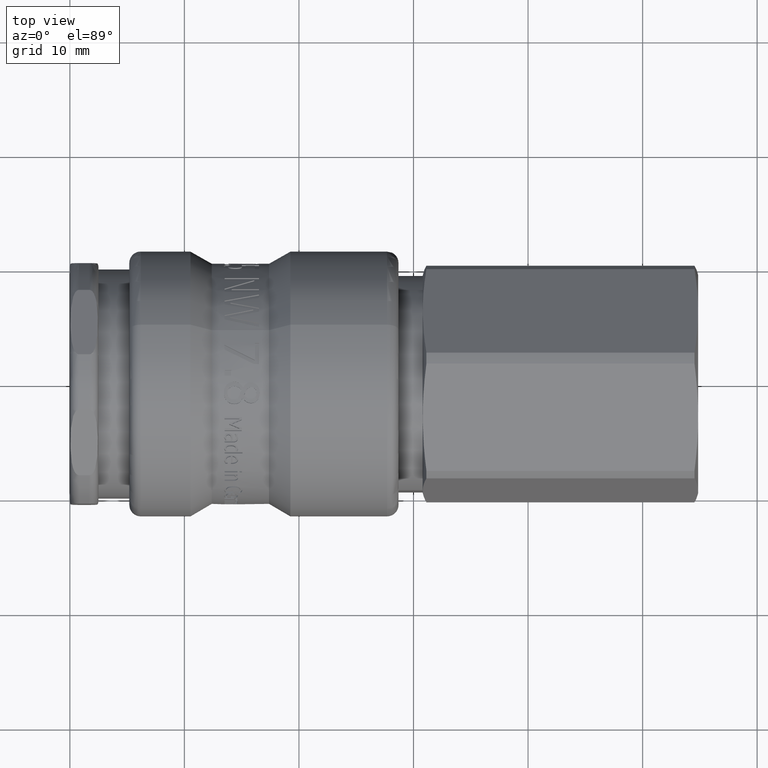
[diagram: clean part render]
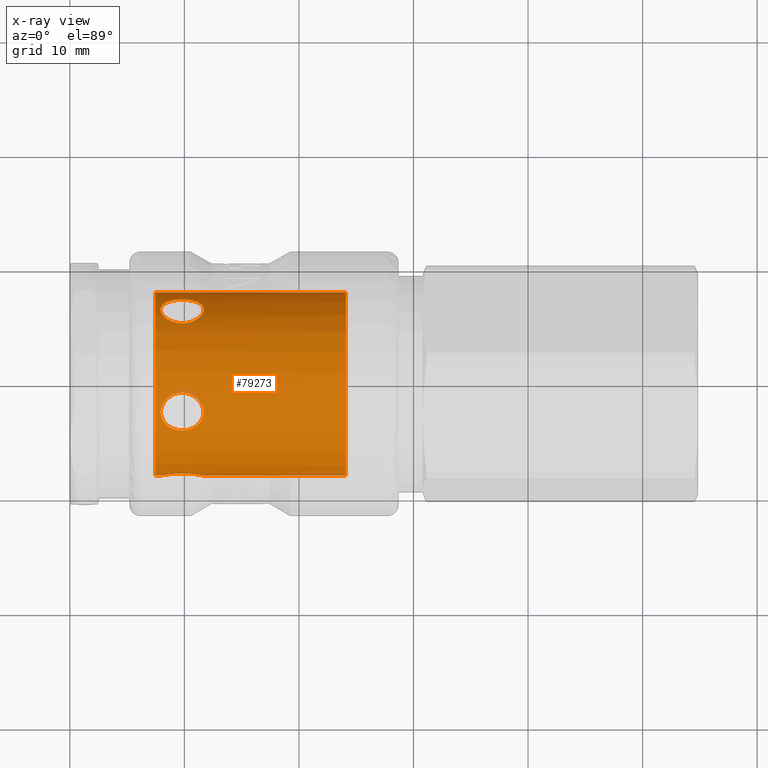
[diagram: x-ray — body ghosted, one internal face saturated and labeled with its STEP entity id]
A machine part, top view, then the same camera in x-ray: the body is ghosted and one INTERNAL B-rep face — a face not visible from any outside direction — is saturated and labeled: STEP entity #79273.
In plain terms, the highlighted cylindrical surface (bore or boss wall) has radius 8 mm, axis along (1, 0, 0).
Its self-contained STEP definition (entity closure, byte-faithful):
#79041=CARTESIAN_POINT('',(18.699999999999999,0.0,0.0));
#79042=DIRECTION('',(1.0,0.0,0.0));
#79043=DIRECTION('',(0.0,1.0,0.0));
#79044=AXIS2_PLACEMENT_3D('',#79041,#79042,#79043);
#79045=CYLINDRICAL_SURFACE('',#79044,8.0);
#79046=CARTESIAN_POINT('',(24.099999999999994,-7.846247984902929,1.560894794471023));
#79047=VERTEX_POINT('',#79046);
#79048=CARTESIAN_POINT('',(24.099999999999994,0.0,0.0));
#79049=DIRECTION('',(-1.0,0.0,0.0));
#79050=DIRECTION('',(0.0,1.0,0.0));
#79051=AXIS2_PLACEMENT_3D('',#79048,#79049,#79050);
#79052=CIRCLE('',#79051,8.0);
#79053=EDGE_CURVE('',#79047,#79047,#79052,.T.);
#79054=ORIENTED_EDGE('',*,*,#79053,.T.);
#79055=EDGE_LOOP('',(#79054));
#79056=FACE_OUTER_BOUND('',#79055,.T.);
#79057=CARTESIAN_POINT('',(9.800000000000001,-4.184617465493961,6.818282530629169));
#79058=VERTEX_POINT('',#79057);
#79059=CARTESIAN_POINT('',(9.800000000000001,-4.184617465493961,6.818282530629169));
#79060=CARTESIAN_POINT('',(9.562953105394296,-4.184617465493961,6.818282530629169));
#79061=CARTESIAN_POINT('',(9.310429020530565,-4.143776551711571,6.843869532865576));
#79062=CARTESIAN_POINT('',(8.845972093103741,-3.976393355732788,6.942458501612481));
#79063=CARTESIAN_POINT('',(8.633969101640776,-3.84968083860342,7.014839908244293));
#79064=CARTESIAN_POINT('',(8.297897496624691,-3.55252623333556,7.169917073077848));
#79065=CARTESIAN_POINT('',(8.151299058588545,-3.361779748357164,7.263084206606292));
#79066=CARTESIAN_POINT('',(7.956174254062867,-2.934699200206196,7.445904638664429));
#79067=CARTESIAN_POINT('',(7.90770785583396,-2.698111226740381,7.535028313711059));
#79068=CARTESIAN_POINT('',(7.90770785583396,-2.246160683258776,7.6818759470114));
#79069=CARTESIAN_POINT('',(7.956174254062867,-2.002371410237687,7.748836300970494));
#79070=CARTESIAN_POINT('',(8.151299058588545,-1.549396835035074,7.851963112260614));
#79071=CARTESIAN_POINT('',(8.297897496624691,-1.340317419983883,7.888707288715832));
#79072=CARTESIAN_POINT('',(8.633969101640776,-1.008762223908913,7.937910321553241));
#79073=CARTESIAN_POINT('',(8.845972093103741,-0.863704920792864,7.95383228236084));
#79074=CARTESIAN_POINT('',(9.310429020530565,-0.670339928805082,7.972457505264603));
#79075=CARTESIAN_POINT('',(9.562953105394296,-0.622259272924392,7.975762872431679));
#79076=CARTESIAN_POINT('',(10.037046894605703,-0.622259272924392,7.975762872431679));
#79077=CARTESIAN_POINT('',(10.289570979469435,-0.670339928805082,7.972457505264603));
#79078=CARTESIAN_POINT('',(10.754027906896262,-0.863704920792866,7.95383228236084));
#79079=CARTESIAN_POINT('',(10.966030898359222,-1.008762223908913,7.937910321553241));
#79080=CARTESIAN_POINT('',(11.302102503375311,-1.340317419983883,7.888707288715832));
#79081=CARTESIAN_POINT('',(11.448700941411449,-1.549396835035075,7.851963112260613));
#79082=CARTESIAN_POINT('',(11.64382574593713,-2.002371410237688,7.748836300970493));
#79083=CARTESIAN_POINT('',(11.692292144166041,-2.246160683258776,7.681875947011401));
#79084=CARTESIAN_POINT('',(11.692292144166039,-2.698111226740381,7.535028313711059));
#79085=CARTESIAN_POINT('',(11.64382574593713,-2.934699200206196,7.445904638664429));
#79086=CARTESIAN_POINT('',(11.448700941411449,-3.361779748357164,7.263084206606292));
#79087=CARTESIAN_POINT('',(11.302102503375311,-3.55252623333556,7.169917073077848));
#79088=CARTESIAN_POINT('',(10.966030898359222,-3.84968083860342,7.014839908244293));
#79089=CARTESIAN_POINT('',(10.754027906896258,-3.976393355732788,6.942458501612481));
#79090=CARTESIAN_POINT('',(10.289570979469435,-4.143776551711571,6.843869532865576));
#79091=CARTESIAN_POINT('',(10.037046894605703,-4.184617465493961,6.818282530629169));
#79092=CARTESIAN_POINT('',(9.799999999999999,-4.184617465493961,6.818282530629169));
#79093=B_SPLINE_CURVE_WITH_KNOTS('',3,(#79059,#79060,#79061,#79062,#79063,#79064,#79065,#79066,#79067,#79068,#79069,#79070,#79071,#79072,#79073,#79074,#79075,#79076,#79077,#79078,#79079,#79080,#79081,#79082,#79083,#79084,#79085,#79086,#79087,#79088,#79089,#79090,#79091,#79092),.UNSPECIFIED.,.T.,.U.,(4,2,2,2,2,2,2,2,2,2,2,2,2,2,2,2,4),(0.0,0.071114068381711,0.142228136763422,0.213509475317651,0.28479081387188,0.356072152426109,0.427353490980339,0.49846755936205,0.56958162774376,0.640695696125471,0.711809764507182,0.783091103061411,0.854372441615641,0.92565378016987,0.996935118724099,1.06804918710581,1.139163255487521),.UNSPECIFIED.);
#79094=EDGE_CURVE('',#79058,#79058,#79093,.T.);
#79095=ORIENTED_EDGE('',*,*,#79094,.T.);
#79096=EDGE_LOOP('',(#79095));
#79097=FACE_BOUND('',#79096,.T.);
#79098=CARTESIAN_POINT('',(9.799999999999999,5.191454118900428,6.086772883174778));
#79099=VERTEX_POINT('',#79098);
#79100=CARTESIAN_POINT('',(9.799999999999999,5.191454118900428,6.086772883174777));
#79101=CARTESIAN_POINT('',(9.562953105394296,5.191454118900428,6.086772883174777));
#79102=CARTESIAN_POINT('',(9.310429020530565,5.228409340534381,6.055837684516744));
#79103=CARTESIAN_POINT('',(8.845972093103743,5.373897273826181,5.927112472063508));
#79104=CARTESIAN_POINT('',(8.63396910164078,5.481892403454976,5.828968791677458));
#79105=CARTESIAN_POINT('',(8.297897496624692,5.721205374583054,5.594279447363398));
#79106=CARTESIAN_POINT('',(8.151299058588551,5.86875648950543,5.44165898744179));
#79107=CARTESIAN_POINT('',(7.956174254062869,6.174604200071835,5.091975869564841));
#79108=CARTESIAN_POINT('',(7.90770785583396,6.33247555644677,4.894508065913669));
#79109=CARTESIAN_POINT('',(7.90770785583396,6.611796353552391,4.510055970765899));
#79110=CARTESIAN_POINT('',(7.956174254062869,6.750814462928448,4.298890481379056));
#79111=CARTESIAN_POINT('',(8.151299058588549,6.988870730568037,3.899953997180928));
#79112=CARTESIAN_POINT('',(8.297897496624687,7.088425611446461,3.712462232042287));
#79113=CARTESIAN_POINT('',(8.633969101640775,7.237676666608448,3.412339075625217));
#79114=CARTESIAN_POINT('',(8.84597209310374,7.297644523007768,3.279301538733819));
#79115=CARTESIAN_POINT('',(9.310429020530563,7.375111231259242,3.101156013481762));
#79116=CARTESIAN_POINT('',(9.562953105394296,7.393112562010062,3.056450007025963));
#79117=CARTESIAN_POINT('',(10.037046894605703,7.393112562010062,3.056450007025963));
#79118=CARTESIAN_POINT('',(10.289570979469435,7.375111231259242,3.101156013481762));
#79119=CARTESIAN_POINT('',(10.75402790689626,7.297644523007768,3.279301538733818));
#79120=CARTESIAN_POINT('',(10.966030898359222,7.237676666608447,3.412339075625217));
#79121=CARTESIAN_POINT('',(11.302102503375311,7.088425611446461,3.712462232042286));
#79122=CARTESIAN_POINT('',(11.448700941411449,6.988870730568037,3.899953997180926));
#79123=CARTESIAN_POINT('',(11.64382574593713,6.750814462928448,4.298890481379054));
#79124=CARTESIAN_POINT('',(11.692292144166039,6.611796353552391,4.510055970765898));
#79125=CARTESIAN_POINT('',(11.692292144166039,6.33247555644677,4.894508065913669));
#79126=CARTESIAN_POINT('',(11.64382574593713,6.174604200071833,5.091975869564841));
#79127=CARTESIAN_POINT('',(11.448700941411449,5.868756489505429,5.44165898744179));
#79128=CARTESIAN_POINT('',(11.302102503375306,5.721205374583054,5.594279447363398));
#79129=CARTESIAN_POINT('',(10.966030898359222,5.481892403454978,5.828968791677458));
#79130=CARTESIAN_POINT('',(10.75402790689626,5.373897273826182,5.927112472063509));
#79131=CARTESIAN_POINT('',(10.289570979469435,5.228409340534381,6.055837684516746));
#79132=CARTESIAN_POINT('',(10.037046894605703,5.191454118900428,6.086772883174777));
#79133=CARTESIAN_POINT('',(9.800000000000001,5.191454118900428,6.086772883174777));
#79134=B_SPLINE_CURVE_WITH_KNOTS('',3,(#79100,#79101,#79102,#79103,#79104,#79105,#79106,#79107,#79108,#79109,#79110,#79111,#79112,#79113,#79114,#79115,#79116,#79117,#79118,#79119,#79120,#79121,#79122,#79123,#79124,#79125,#79126,#79127,#79128,#79129,#79130,#79131,#79132,#79133),.UNSPECIFIED.,.T.,.U.,(4,2,2,2,2,2,2,2,2,2,2,2,2,2,2,2,4),(0.0,0.071114068381711,0.142228136763421,0.213509475317651,0.28479081387188,0.356072152426109,0.427353490980338,0.498467559362049,0.56958162774376,0.640695696125471,0.711809764507182,0.783091103061411,0.854372441615641,0.92565378016987,0.996935118724099,1.06804918710581,1.139163255487521),.UNSPECIFIED.);
#79135=EDGE_CURVE('',#79099,#79099,#79134,.T.);
#79136=ORIENTED_EDGE('',*,*,#79135,.T.);
#79137=EDGE_LOOP('',(#79136));
#79138=FACE_BOUND('',#79137,.T.);
#79139=CARTESIAN_POINT('',(9.800000000000001,7.393112562010062,-3.056450007025964));
#79140=VERTEX_POINT('',#79139);
#79141=CARTESIAN_POINT('',(9.800000000000001,7.393112562010062,-3.056450007025964));
#79142=CARTESIAN_POINT('',(9.562953105394296,7.393112562010062,-3.056450007025964));
#79143=CARTESIAN_POINT('',(9.310429020530565,7.375111231259241,-3.101156013481765));
#79144=CARTESIAN_POINT('',(8.845972093103741,7.297644523007766,-3.279301538733821));
#79145=CARTESIAN_POINT('',(8.633969101640776,7.237676666608445,-3.412339075625219));
#79146=CARTESIAN_POINT('',(8.297897496624691,7.088425611446461,-3.71246223204229));
#79147=CARTESIAN_POINT('',(8.151299058588547,6.988870730568037,-3.899953997180929));
#79148=CARTESIAN_POINT('',(7.956174254062868,6.750814462928446,-4.298890481379058));
#79149=CARTESIAN_POINT('',(7.90770785583396,6.611796353552388,-4.510055970765901));
#79150=CARTESIAN_POINT('',(7.90770785583396,6.332475556446769,-4.894508065913671));
#79151=CARTESIAN_POINT('',(7.956174254062868,6.174604200071833,-5.091975869564841));
#79152=CARTESIAN_POINT('',(8.151299058588549,5.86875648950543,-5.441658987441789));
#79153=CARTESIAN_POINT('',(8.297897496624689,5.721205374583052,-5.594279447363398));
#79154=CARTESIAN_POINT('',(8.633969101640775,5.481892403454975,-5.828968791677458));
#79155=CARTESIAN_POINT('',(8.845972093103738,5.373897273826181,-5.92711247206351));
#79156=CARTESIAN_POINT('',(9.310429020530563,5.228409340534379,-6.055837684516749));
#79157=CARTESIAN_POINT('',(9.562953105394296,5.191454118900428,-6.086772883174779));
#79158=CARTESIAN_POINT('',(10.037046894605703,5.191454118900428,-6.08677288317478));
#79159=CARTESIAN_POINT('',(10.289570979469435,5.228409340534379,-6.055837684516749));
#79160=CARTESIAN_POINT('',(10.75402790689626,5.373897273826179,-5.927112472063511));
#79161=CARTESIAN_POINT('',(10.966030898359222,5.481892403454975,-5.828968791677458));
#79162=CARTESIAN_POINT('',(11.302102503375311,5.721205374583052,-5.5942794473634));
#79163=CARTESIAN_POINT('',(11.448700941411449,5.868756489505431,-5.441658987441789));
#79164=CARTESIAN_POINT('',(11.643825745937129,6.174604200071836,-5.091975869564839));
#79165=CARTESIAN_POINT('',(11.692292144166041,6.33247555644677,-4.894508065913672));
#79166=CARTESIAN_POINT('',(11.692292144166039,6.611796353552388,-4.510055970765901));
#79167=CARTESIAN_POINT('',(11.64382574593713,6.750814462928445,-4.298890481379056));
#79168=CARTESIAN_POINT('',(11.448700941411449,6.988870730568035,-3.899953997180928));
#79169=CARTESIAN_POINT('',(11.302102503375306,7.088425611446461,-3.71246223204229));
#79170=CARTESIAN_POINT('',(10.966030898359222,7.237676666608445,-3.41233907562522));
#79171=CARTESIAN_POINT('',(10.754027906896262,7.297644523007767,-3.279301538733821));
#79172=CARTESIAN_POINT('',(10.289570979469438,7.375111231259242,-3.101156013481763));
#79173=CARTESIAN_POINT('',(10.037046894605703,7.393112562010062,-3.056450007025964));
#79174=CARTESIAN_POINT('',(9.800000000000001,7.393112562010062,-3.056450007025964));
#79175=B_SPLINE_CURVE_WITH_KNOTS('',3,(#79141,#79142,#79143,#79144,#79145,#79146,#79147,#79148,#79149,#79150,#79151,#79152,#79153,#79154,#79155,#79156,#79157,#79158,#79159,#79160,#79161,#79162,#79163,#79164,#79165,#79166,#79167,#79168,#79169,#79170,#79171,#79172,#79173,#79174),.UNSPECIFIED.,.T.,.U.,(4,2,2,2,2,2,2,2,2,2,2,2,2,2,2,2,4),(0.0,0.071114068381711,0.142228136763422,0.213509475317651,0.28479081387188,0.356072152426109,0.427353490980338,0.498467559362049,0.56958162774376,0.640695696125471,0.711809764507182,0.783091103061411,0.854372441615641,0.92565378016987,0.996935118724099,1.06804918710581,1.139163255487521),.UNSPECIFIED.);
#79176=EDGE_CURVE('',#79140,#79140,#79175,.T.);
#79177=ORIENTED_EDGE('',*,*,#79176,.T.);
#79178=EDGE_LOOP('',(#79177));
#79179=FACE_BOUND('',#79178,.T.);
#79180=CARTESIAN_POINT('',(9.800000000000001,-0.622259272924394,-7.975762872431679));
#79181=VERTEX_POINT('',#79180);
#79182=CARTESIAN_POINT('',(9.800000000000001,-0.622259272924394,-7.975762872431679));
#79183=CARTESIAN_POINT('',(9.562953105394296,-0.622259272924394,-7.975762872431679));
#79184=CARTESIAN_POINT('',(9.310429020530565,-0.670339928805084,-7.972457505264603));
#79185=CARTESIAN_POINT('',(8.845972093103741,-0.863704920792866,-7.95383228236084));
#79186=CARTESIAN_POINT('',(8.633969101640776,-1.008762223908915,-7.937910321553241));
#79187=CARTESIAN_POINT('',(8.297897496624691,-1.340317419983885,-7.888707288715832));
#79188=CARTESIAN_POINT('',(8.151299058588547,-1.549396835035076,-7.851963112260613));
#79189=CARTESIAN_POINT('',(7.956174254062868,-2.002371410237689,-7.748836300970493));
#79190=CARTESIAN_POINT('',(7.90770785583396,-2.246160683258778,-7.681875947011399));
#79191=CARTESIAN_POINT('',(7.90770785583396,-2.698111226740382,-7.535028313711059));
#79192=CARTESIAN_POINT('',(7.956174254062867,-2.934699200206198,-7.445904638664429));
#79193=CARTESIAN_POINT('',(8.151299058588545,-3.361779748357165,-7.263084206606292));
#79194=CARTESIAN_POINT('',(8.297897496624691,-3.55252623333556,-7.169917073077848));
#79195=CARTESIAN_POINT('',(8.633969101640776,-3.849680838603421,-7.014839908244293));
#79196=CARTESIAN_POINT('',(8.84597209310374,-3.976393355732788,-6.94245850161248));
#79197=CARTESIAN_POINT('',(9.310429020530563,-4.143776551711571,-6.843869532865575));
#79198=CARTESIAN_POINT('',(9.562953105394296,-4.184617465493963,-6.818282530629168));
#79199=CARTESIAN_POINT('',(10.037046894605703,-4.184617465493963,-6.818282530629168));
#79200=CARTESIAN_POINT('',(10.289570979469435,-4.143776551711571,-6.843869532865575));
#79201=CARTESIAN_POINT('',(10.75402790689626,-3.976393355732788,-6.94245850161248));
#79202=CARTESIAN_POINT('',(10.966030898359222,-3.849680838603422,-7.014839908244293));
#79203=CARTESIAN_POINT('',(11.302102503375311,-3.552526233335561,-7.169917073077848));
#79204=CARTESIAN_POINT('',(11.448700941411449,-3.361779748357165,-7.263084206606292));
#79205=CARTESIAN_POINT('',(11.64382574593713,-2.934699200206198,-7.445904638664429));
#79206=CARTESIAN_POINT('',(11.692292144166039,-2.698111226740382,-7.535028313711059));
#79207=CARTESIAN_POINT('',(11.692292144166039,-2.246160683258778,-7.681875947011399));
#79208=CARTESIAN_POINT('',(11.643825745937132,-2.002371410237689,-7.748836300970493));
#79209=CARTESIAN_POINT('',(11.448700941411452,-1.549396835035076,-7.851963112260613));
#79210=CARTESIAN_POINT('',(11.302102503375309,-1.340317419983886,-7.888707288715832));
#79211=CARTESIAN_POINT('',(10.966030898359222,-1.008762223908915,-7.937910321553241));
#79212=CARTESIAN_POINT('',(10.754027906896262,-0.863704920792868,-7.953832282360841));
#79213=CARTESIAN_POINT('',(10.289570979469435,-0.670339928805084,-7.972457505264604));
#79214=CARTESIAN_POINT('',(10.037046894605703,-0.622259272924394,-7.975762872431679));
#79215=CARTESIAN_POINT('',(9.800000000000001,-0.622259272924394,-7.975762872431679));
#79216=B_SPLINE_CURVE_WITH_KNOTS('',3,(#79182,#79183,#79184,#79185,#79186,#79187,#79188,#79189,#79190,#79191,#79192,#79193,#79194,#79195,#79196,#79197,#79198,#79199,#79200,#79201,#79202,#79203,#79204,#79205,#79206,#79207,#79208,#79209,#79210,#79211,#79212,#79213,#79214,#79215),.UNSPECIFIED.,.T.,.U.,(4,2,2,2,2,2,2,2,2,2,2,2,2,2,2,2,4),(0.0,0.071114068381711,0.142228136763422,0.213509475317651,0.28479081387188,0.356072152426109,0.427353490980338,0.498467559362049,0.56958162774376,0.640695696125471,0.711809764507182,0.783091103061412,0.854372441615641,0.92565378016987,0.996935118724099,1.06804918710581,1.139163255487521),.UNSPECIFIED.);
#79217=EDGE_CURVE('',#79181,#79181,#79216,.T.);
#79218=ORIENTED_EDGE('',*,*,#79217,.T.);
#79219=EDGE_LOOP('',(#79218));
#79220=FACE_BOUND('',#79219,.T.);
#79221=CARTESIAN_POINT('',(9.800000000000001,-7.777689942492136,-1.872842534346306));
#79222=VERTEX_POINT('',#79221);
#79223=CARTESIAN_POINT('',(9.800000000000001,-7.777689942492136,-1.872842534346306));
#79224=CARTESIAN_POINT('',(9.562953105394296,-7.777689942492136,-1.872842534346306));
#79225=CARTESIAN_POINT('',(9.310429020530563,-7.789404091276968,-1.826093698635955));
#79226=CARTESIAN_POINT('',(8.845972093103738,-7.831443520308294,-1.636437152581329));
#79227=CARTESIAN_POINT('',(8.633969101640775,-7.861126007551087,-1.493559302743291));
#79228=CARTESIAN_POINT('',(8.297897496624687,-7.916787332710069,-1.163026999683125));
#79229=CARTESIAN_POINT('',(8.151299058588547,-7.946450636681228,-0.952826084606536));
#79230=CARTESIAN_POINT('',(7.956174254062868,-7.988348052556398,-0.490153725879717));
#79231=CARTESIAN_POINT('',(7.907707855833959,-8.0,-0.237604461847431));
#79232=CARTESIAN_POINT('',(7.907707855833959,-8.0,0.237604461847431));
#79233=CARTESIAN_POINT('',(7.956174254062868,-7.988348052556398,0.490153725879717));
#79234=CARTESIAN_POINT('',(8.151299058588547,-7.946450636681228,0.952826084606536));
#79235=CARTESIAN_POINT('',(8.297897496624687,-7.916787332710069,1.163026999683125));
#79236=CARTESIAN_POINT('',(8.633969101640775,-7.861126007551087,1.493559302743291));
#79237=CARTESIAN_POINT('',(8.845972093103738,-7.831443520308294,1.636437152581329));
#79238=CARTESIAN_POINT('',(9.310429020530563,-7.789404091276968,1.826093698635955));
#79239=CARTESIAN_POINT('',(9.562953105394296,-7.777689942492136,1.872842534346306));
#79240=CARTESIAN_POINT('',(10.037046894605703,-7.777689942492136,1.872842534346306));
#79241=CARTESIAN_POINT('',(10.289570979469435,-7.789404091276968,1.826093698635956));
#79242=CARTESIAN_POINT('',(10.754027906896262,-7.831443520308294,1.636437152581329));
#79243=CARTESIAN_POINT('',(10.966030898359222,-7.861126007551087,1.493559302743291));
#79244=CARTESIAN_POINT('',(11.302102503375311,-7.916787332710069,1.163026999683125));
#79245=CARTESIAN_POINT('',(11.448700941411452,-7.946450636681228,0.952826084606536));
#79246=CARTESIAN_POINT('',(11.643825745937132,-7.988348052556398,0.490153725879717));
#79247=CARTESIAN_POINT('',(11.692292144166041,-8.0,0.237604461847431));
#79248=CARTESIAN_POINT('',(11.692292144166041,-8.0,-0.23760446184743));
#79249=CARTESIAN_POINT('',(11.64382574593713,-7.988348052556398,-0.490153725879716));
#79250=CARTESIAN_POINT('',(11.448700941411454,-7.946450636681228,-0.952826084606535));
#79251=CARTESIAN_POINT('',(11.302102503375311,-7.916787332710069,-1.163026999683124));
#79252=CARTESIAN_POINT('',(10.966030898359225,-7.861126007551087,-1.493559302743291));
#79253=CARTESIAN_POINT('',(10.754027906896264,-7.831443520308294,-1.636437152581328));
#79254=CARTESIAN_POINT('',(10.289570979469438,-7.789404091276968,-1.826093698635955));
#79255=CARTESIAN_POINT('',(10.037046894605703,-7.777689942492136,-1.872842534346306));
#79256=CARTESIAN_POINT('',(9.799999999999999,-7.777689942492136,-1.872842534346306));
#79257=B_SPLINE_CURVE_WITH_KNOTS('',3,(#79223,#79224,#79225,#79226,#79227,#79228,#79229,#79230,#79231,#79232,#79233,#79234,#79235,#79236,#79237,#79238,#79239,#79240,#79241,#79242,#79243,#79244,#79245,#79246,#79247,#79248,#79249,#79250,#79251,#79252,#79253,#79254,#79255,#79256),.UNSPECIFIED.,.T.,.U.,(4,2,2,2,2,2,2,2,2,2,2,2,2,2,2,2,4),(0.0,0.071114068381711,0.142228136763422,0.213509475317651,0.28479081387188,0.35607215242611,0.427353490980339,0.49846755936205,0.569581627743761,0.640695696125472,0.711809764507183,0.783091103061412,0.854372441615641,0.92565378016987,0.996935118724099,1.06804918710581,1.139163255487521),.UNSPECIFIED.);
#79258=EDGE_CURVE('',#79222,#79222,#79257,.T.);
#79259=ORIENTED_EDGE('',*,*,#79258,.T.);
#79260=EDGE_LOOP('',(#79259));
#79261=FACE_BOUND('',#79260,.T.);
#79262=CARTESIAN_POINT('',(7.449999999999997,7.999999999999998,0.0));
#79263=VERTEX_POINT('',#79262);
#79264=CARTESIAN_POINT('',(7.449999999999997,0.0,0.0));
#79265=DIRECTION('',(1.0,0.0,0.0));
#79266=DIRECTION('',(0.0,1.0,0.0));
#79267=AXIS2_PLACEMENT_3D('',#79264,#79265,#79266);
#79268=CIRCLE('',#79267,7.999999999999998);
#79269=EDGE_CURVE('',#79263,#79263,#79268,.T.);
#79270=ORIENTED_EDGE('',*,*,#79269,.T.);
#79271=EDGE_LOOP('',(#79270));
#79272=FACE_BOUND('',#79271,.T.);
#79273=ADVANCED_FACE('',(#79056,#79097,#79138,#79179,#79220,#79261,#79272),#79045,.T.);